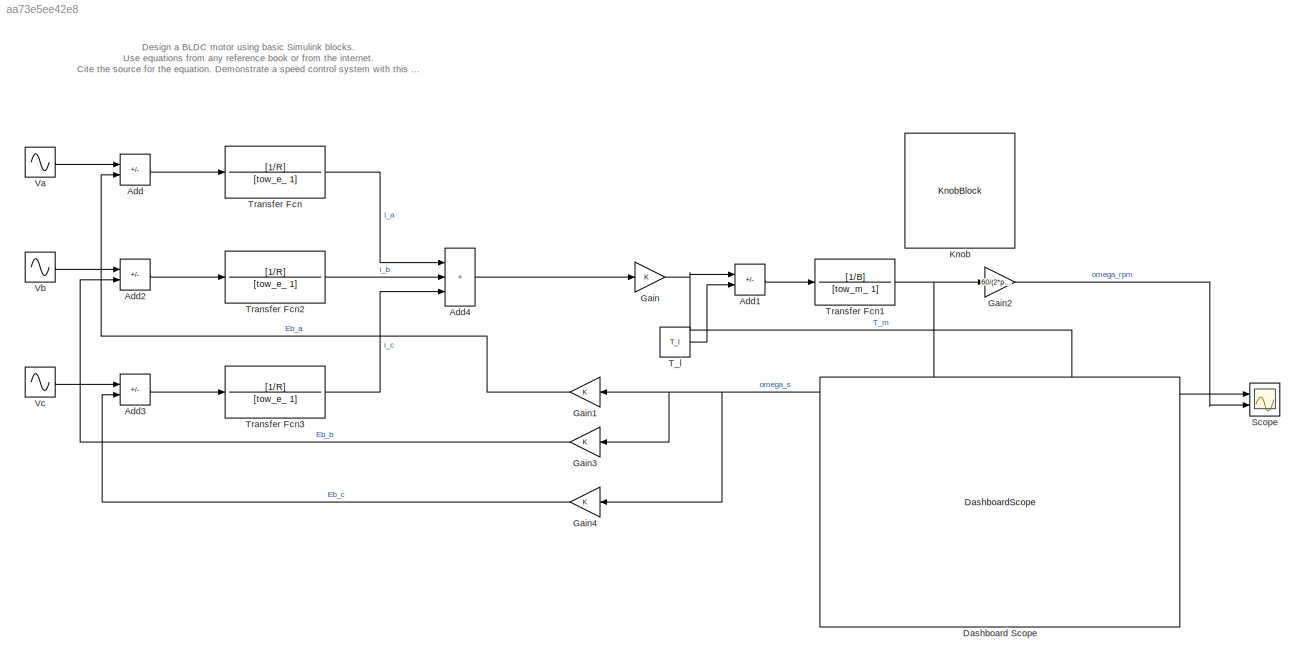
MODEL slx_aa73e5ee42e8
KIND model
CONFIG AbsTol = auto
CONFIG EnableMultiTasking = off
CONFIG FixedStep = auto
CONFIG MaxStep = auto
CONFIG MinStep = auto
CONFIG RelTol = 1e-3
CONFIG SampleTimeConstraint = Unconstrained
CONFIG Solver = VariableStepAuto
CONFIG SolverName = VariableStepAuto
CONFIG StartTime = 0.0
CONFIG StopTime = inf
WORKSPACE source: mxarray member
WORKSPACE B = 0.01
WORKSPACE J = 5
WORKSPACE K = 1.6
WORKSPACE L = 0.1
WORKSPACE R = 0.5
WORKSPACE T_l = 5
WORKSPACE V = 160
WORKSPACE tow_e_ = 0.2
WORKSPACE tow_m_ = 500
BLOCK [Sum] Add
  IconShape = rectangular
  Inputs = +-
  Ports = [2, 1]
BLOCK [Sum] Add1
  IconShape = rectangular
  Inputs = +-
  Ports = [2, 1]
BLOCK [Sum] Add2
  IconShape = rectangular
  Inputs = +-
  Ports = [2, 1]
BLOCK [Sum] Add3
  IconShape = rectangular
  Inputs = +-
  Ports = [2, 1]
BLOCK [Sum] Add4
  IconShape = rectangular
  Inputs = +++
  Ports = [3, 1]
BLOCK [DashboardScope] Dashboard Scope
BLOCK [Gain] Gain
  Gain = K
BLOCK [Gain] Gain1
  Gain = K
  NameLocation = top
BLOCK [Gain] Gain2
  Gain = 60/(2*pi)
BLOCK [Gain] Gain3
  Gain = K
  NameLocation = top
BLOCK [Gain] Gain4
  Gain = K
  NameLocation = top
BLOCK [KnobBlock] Knob
  ScaleMax = 18
  ScaleMin = 5
BLOCK [Scope] Scope
  Floating = off
  NumInputPorts = 2
  Ports = [2]
  ScopeSpecificationString = Simulink.scopes.TimeScopeBlockCfg('CurrentConfiguration', extmgr.ConfigurationSet(extmgr.Configuration('Core','General UI',true),extmgr.Configuration('Core','Source UI',true),extmgr.Configuration('Sources','WiredSimulink',true,'DataLoggingVariableName','ScopeData1'),extmgr.Configuration('Visuals','Time Domain',true,'SerializedDisplays',{struct('MinYLimReal','-13.71925','MaxYLimReal','19.3632','YLa...<+1403ch>
BLOCK [Constant] T_l
  Value = T_l
BLOCK [TransferFcn] Transfer Fcn
  Denominator = [tow_e_ 1]
  Numerator = [1/R]
BLOCK [TransferFcn] Transfer Fcn1
  Denominator = [tow_m_ 1]
  Numerator = [1/B]
BLOCK [TransferFcn] Transfer Fcn2
  Denominator = [tow_e_ 1]
  Numerator = [1/R]
BLOCK [TransferFcn] Transfer Fcn3
  Denominator = [tow_e_ 1]
  Numerator = [1/R]
BLOCK [Sin] Va
  Amplitude = V
  Frequency = 5*pi
  Ports = [0, 1]
  SampleTime = 1e-4
BLOCK [Sin] Vb
  Amplitude = V
  Frequency = 5*pi
  Phase = 2*pi/3
  Ports = [0, 1]
  SampleTime = 1e-4
BLOCK [Sin] Vc
  Amplitude = V
  Frequency = 5*pi
  Phase = 4*pi/3
  Ports = [0, 1]
  SampleTime = 1e-4
ANNOTATION (root): Design a BLDC motor using basic Simulink blocks. Use equations from any reference book or from the internet. Cite the source for the equation. Demonstrate a speed control system with this motor.
LINE Add1:1 -> Transfer Fcn1:1
LINE Add2:1 -> Transfer Fcn2:1
LINE Add3:1 -> Transfer Fcn3:1
LINE Add4:1 -> Gain:1
LINE Add:1 -> Transfer Fcn:1
LINE Gain1:1 -> Add:2
LINE Gain2:1 -> Scope:2
LINE Gain3:1 -> Add2:2
LINE Gain4:1 -> Add3:2
NET Gain:1 -> Add1:1, Scope:1
LINE T_l:1 -> Add1:2
NET Transfer Fcn1:1 -> Gain1:1, Gain2:1, Gain3:1, Gain4:1
LINE Transfer Fcn2:1 -> Add4:2
LINE Transfer Fcn3:1 -> Add4:3
LINE Transfer Fcn:1 -> Add4:1
LINE Va:1 -> Add:1
LINE Vb:1 -> Add2:1
LINE Vc:1 -> Add3:1
note: NET lines group one-source signal fan-out (src -> all destinations, sorted); 1:1 wires keep LINE
